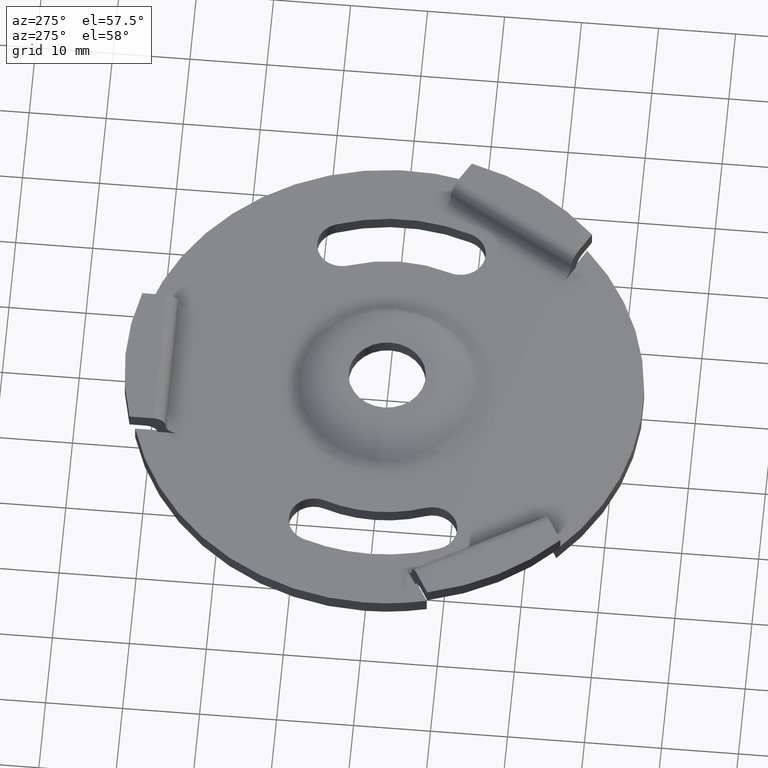
[diagram: clean part render]
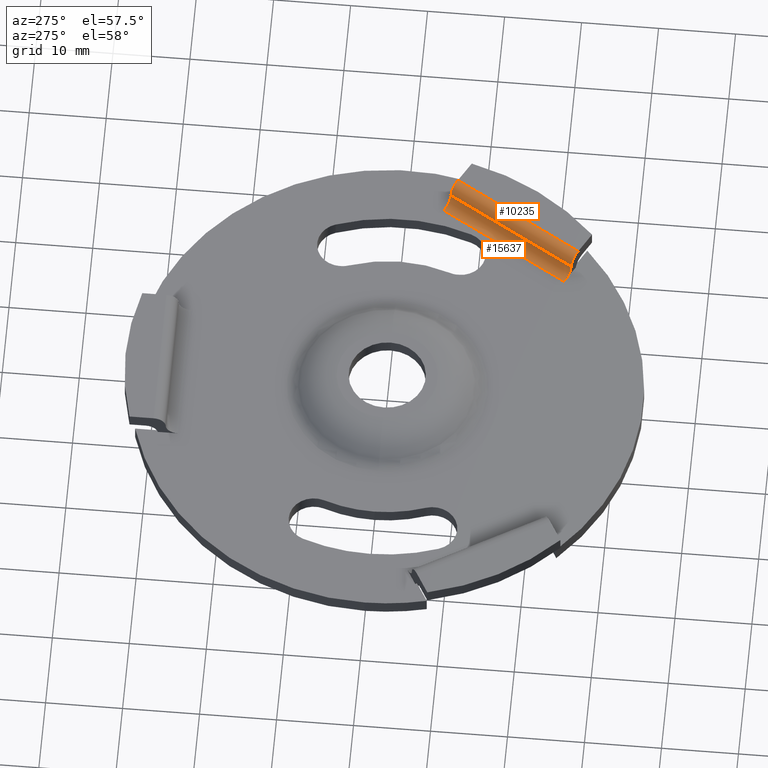
[diagram: same view with one multi-face feature highlighted, each face labeled with its STEP entity id]
A machine part, auxiliary view. The highlighted faces form ONE feature: a constant-radius fillet chain: 2 tangent blend faces with common blend radius 1.6 mm. The faces share edges in the B-rep.
Their STEP definitions:
[1] entity #10235 (Cylinder):
#1234 = ORIENTED_EDGE ( 'NONE', *, *, #7917, .F. ) ;
#1586 = VERTEX_POINT ( 'NONE', #16687 ) ;
#1940 = DIRECTION ( 'NONE',  ( -0.4999999999999920064, -0.8660254037844433705, 0.000000000000000000 ) ) ;
#2329 = CARTESIAN_POINT ( 'NONE',  ( 19.44453175674111733, -22.19596075862329698, 3.600000000000000089 ) ) ;
#3067 = AXIS2_PLACEMENT_3D ( 'NONE', #7113, #16188, #11019 ) ;
#3541 = CYLINDRICAL_SURFACE ( 'NONE', #10512, 1.599999999999999645 ) ;
#3798 = DIRECTION ( 'NONE',  ( -0.4999999999999919509, -0.8660254037844432595, 0.000000000000000000 ) ) ;
#3966 = VECTOR ( 'NONE', #14244, 1000.000000000000114 ) ;
#4795 = LINE ( 'NONE', #2329, #3966 ) ;
#5233 = EDGE_CURVE ( 'NONE', #13108, #1586, #8549, .T. ) ;
#5905 = CARTESIAN_POINT ( 'NONE',  ( 20.83017240279622939, -22.99596075862328348, 5.200000000000000178 ) ) ;
#7113 = CARTESIAN_POINT ( 'NONE',  ( 20.83017240279622939, -22.99596075862328348, 3.600000000000000089 ) ) ;
#7400 = ORIENTED_EDGE ( 'NONE', *, *, #8116, .F. ) ;
#7917 = EDGE_CURVE ( 'NONE', #1586, #11442, #13614, .T. ) ;
#8116 = EDGE_CURVE ( 'NONE', #11442, #11327, #10754, .T. ) ;
#8529 = CARTESIAN_POINT ( 'NONE',  ( 25.58017240279614768, -14.76871942267107585, 3.600000000000000089 ) ) ;
#8549 = CIRCLE ( 'NONE', #14169, 1.600000000000000089 ) ;
#9141 = CARTESIAN_POINT ( 'NONE',  ( 25.58017240279614768, -14.76871942267107585, 5.200000000000000178 ) ) ;
#9357 = CARTESIAN_POINT ( 'NONE',  ( 30.33017240279606952, -6.541478086718866436, 3.600000000000000089 ) ) ;
#9731 = DIRECTION ( 'NONE',  ( 0.8660254037844433705, -0.4999999999999916733, 0.000000000000000000 ) ) ;
#9924 = VECTOR ( 'NONE', #3798, 1000.000000000000114 ) ;
#10235 = ADVANCED_FACE ( 'NONE', ( #11352 ), #3541, .T. ) ;
#10512 = AXIS2_PLACEMENT_3D ( 'NONE', #8529, #1940, #9731 ) ;
#10754 = CIRCLE ( 'NONE', #3067, 1.600000000000000533 ) ;
#11019 = DIRECTION ( 'NONE',  ( 0.8660254037844429265, -0.4999999999999925060, 0.000000000000000000 ) ) ;
#11327 = VERTEX_POINT ( 'NONE', #13101 ) ;
#11352 = FACE_OUTER_BOUND ( 'NONE', #13582, .T. ) ;
#11442 = VERTEX_POINT ( 'NONE', #5905 ) ;
#12122 = ORIENTED_EDGE ( 'NONE', *, *, #5233, .F. ) ;
#13101 = CARTESIAN_POINT ( 'NONE',  ( 19.44453175674111378, -22.19596075862329698, 3.599999999892133928 ) ) ;
#13108 = VERTEX_POINT ( 'NONE', #15156 ) ;
#13322 = DIRECTION ( 'NONE',  ( -0.8660254037844431485, 0.4999999999999921174, 0.000000000000000000 ) ) ;
#13582 = EDGE_LOOP ( 'NONE', ( #12122, #16888, #7400, #1234 ) ) ;
#13614 = LINE ( 'NONE', #9141, #9924 ) ;
#14169 = AXIS2_PLACEMENT_3D ( 'NONE', #9357, #16019, #13322 ) ;
#14244 = DIRECTION ( 'NONE',  ( -0.4999999999999919509, -0.8660254037844432595, -0.000000000000000000 ) ) ;
#14371 = EDGE_CURVE ( 'NONE', #13108, #11327, #4795, .T. ) ;
#15156 = CARTESIAN_POINT ( 'NONE',  ( 28.94453175674096457, -5.741478086718878160, 3.599999999892133928 ) ) ;
#16019 = DIRECTION ( 'NONE',  ( 0.4999999999999920064, 0.8660254037844433705, -0.000000000000000000 ) ) ;
#16188 = DIRECTION ( 'NONE',  ( -0.4999999999999920064, -0.8660254037844433705, 0.000000000000000000 ) ) ;
#16687 = CARTESIAN_POINT ( 'NONE',  ( 30.33017240279607307, -6.541478086718866436, 5.200000000000000178 ) ) ;
#16888 = ORIENTED_EDGE ( 'NONE', *, *, #14371, .T. ) ;
[2] entity #15637 (Cylinder):
#538 = EDGE_CURVE ( 'NONE', #14209, #13108, #11013, .T. ) ;
#562 = CARTESIAN_POINT ( 'NONE',  ( 27.55889111068585251, -4.941478086718891660, 3.600000000000000089 ) ) ;
#686 = DIRECTION ( 'NONE',  ( 0.8660254037844433705, -0.4999999999999916733, 0.000000000000000000 ) ) ;
#709 = CARTESIAN_POINT ( 'NONE',  ( 27.55889111068585251, -4.941478086718892548, 2.000000000000000000 ) ) ;
#811 = DIRECTION ( 'NONE',  ( -0.4999999999999920064, -0.8660254037844433705, 0.000000000000000000 ) ) ;
#1138 = CARTESIAN_POINT ( 'NONE',  ( 18.05889111068600883, -21.39596075862330693, 3.600000000000000089 ) ) ;
#1144 = VECTOR ( 'NONE', #10213, 1000.000000000000114 ) ;
#2289 = DIRECTION ( 'NONE',  ( 0.4999999999999920064, 0.8660254037844433705, -0.000000000000000000 ) ) ;
#2329 = CARTESIAN_POINT ( 'NONE',  ( 19.44453175674111733, -22.19596075862329698, 3.600000000000000089 ) ) ;
#3370 = AXIS2_PLACEMENT_3D ( 'NONE', #1138, #2289, #7715 ) ;
#3647 = CARTESIAN_POINT ( 'NONE',  ( 18.05889111068600883, -21.39596075862331048, 2.000000000009549694 ) ) ;
#3966 = VECTOR ( 'NONE', #14244, 1000.000000000000114 ) ;
#4795 = LINE ( 'NONE', #2329, #3966 ) ;
#5090 = ORIENTED_EDGE ( 'NONE', *, *, #12669, .F. ) ;
#6436 = LINE ( 'NONE', #7678, #1144 ) ;
#7002 = EDGE_CURVE ( 'NONE', #10388, #14209, #6436, .T. ) ;
#7044 = ORIENTED_EDGE ( 'NONE', *, *, #538, .F. ) ;
#7273 = CARTESIAN_POINT ( 'NONE',  ( 22.80889111068593067, -13.16871942267110107, 3.600000000000000089 ) ) ;
#7678 = CARTESIAN_POINT ( 'NONE',  ( 27.55889111068585606, -4.941478086718888107, 2.000000000000000000 ) ) ;
#7715 = DIRECTION ( 'NONE',  ( 0.8660254037844429265, -0.4999999999999925060, 0.000000000000000000 ) ) ;
#7881 = CYLINDRICAL_SURFACE ( 'NONE', #15422, 1.599999999999999645 ) ;
#8954 = CIRCLE ( 'NONE', #3370, 1.600000000000000533 ) ;
#9525 = ORIENTED_EDGE ( 'NONE', *, *, #7002, .F. ) ;
#10213 = DIRECTION ( 'NONE',  ( 0.4999999999999919509, 0.8660254037844432595, -0.000000000000000000 ) ) ;
#10388 = VERTEX_POINT ( 'NONE', #3647 ) ;
#11013 = CIRCLE ( 'NONE', #12811, 1.600000000000000089 ) ;
#11327 = VERTEX_POINT ( 'NONE', #13101 ) ;
#12269 = ORIENTED_EDGE ( 'NONE', *, *, #14371, .F. ) ;
#12669 = EDGE_CURVE ( 'NONE', #11327, #10388, #8954, .T. ) ;
#12811 = AXIS2_PLACEMENT_3D ( 'NONE', #562, #14893, #13752 ) ;
#13101 = CARTESIAN_POINT ( 'NONE',  ( 19.44453175674111378, -22.19596075862329698, 3.599999999892133928 ) ) ;
#13108 = VERTEX_POINT ( 'NONE', #15156 ) ;
#13634 = FACE_OUTER_BOUND ( 'NONE', #16149, .T. ) ;
#13752 = DIRECTION ( 'NONE',  ( -0.8660254037844431485, 0.4999999999999921174, 0.000000000000000000 ) ) ;
#14209 = VERTEX_POINT ( 'NONE', #709 ) ;
#14244 = DIRECTION ( 'NONE',  ( -0.4999999999999919509, -0.8660254037844432595, -0.000000000000000000 ) ) ;
#14371 = EDGE_CURVE ( 'NONE', #13108, #11327, #4795, .T. ) ;
#14893 = DIRECTION ( 'NONE',  ( -0.4999999999999920064, -0.8660254037844433705, 0.000000000000000000 ) ) ;
#15156 = CARTESIAN_POINT ( 'NONE',  ( 28.94453175674096457, -5.741478086718878160, 3.599999999892133928 ) ) ;
#15422 = AXIS2_PLACEMENT_3D ( 'NONE', #7273, #811, #686 ) ;
#15637 = ADVANCED_FACE ( 'NONE', ( #13634 ), #7881, .F. ) ;
#16149 = EDGE_LOOP ( 'NONE', ( #12269, #7044, #9525, #5090 ) ) ;